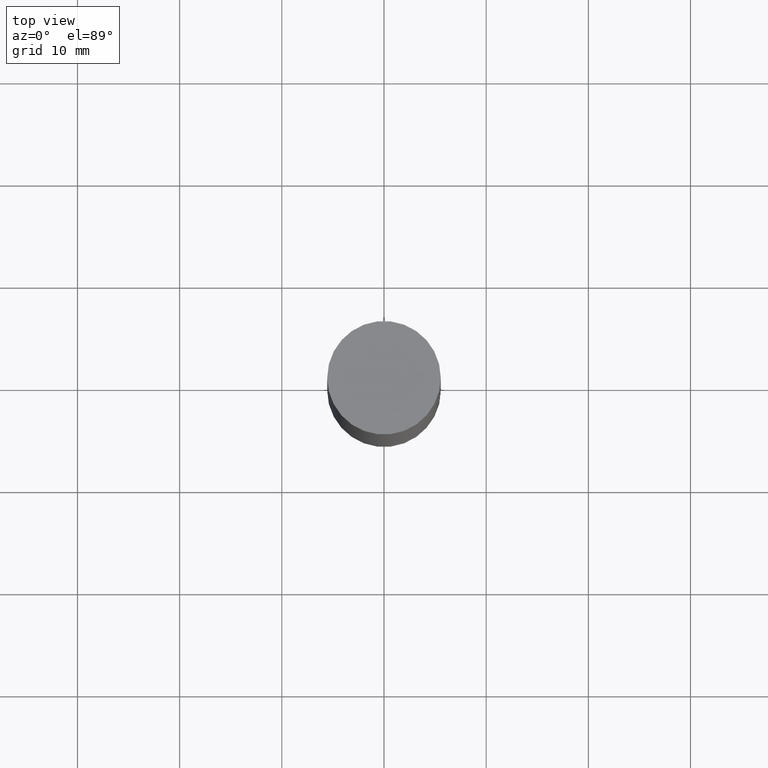
[diagram: clean part render]
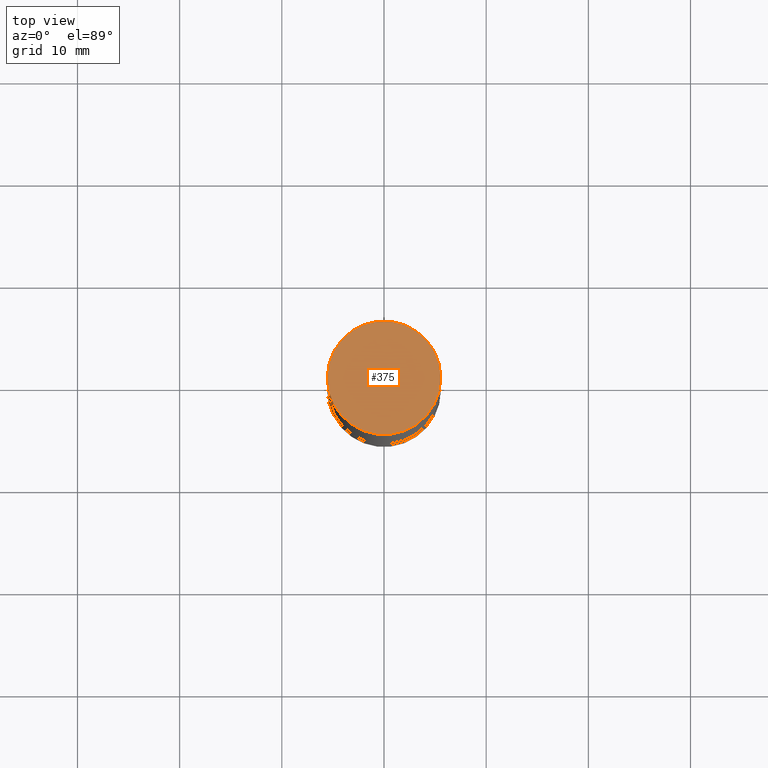
[diagram: same view with one face highlighted and labeled with its STEP entity id]
A machine part, top view. The second image highlights one B-rep face of the part: STEP entity #375.
In plain terms, the highlighted planar face has unit normal (0, 0, 1).
Its self-contained STEP definition (entity closure, byte-faithful):
#18 = DIRECTION ( 'NONE',  ( -1.000000000000000000, 6.982962677686265922E-15, -9.839502134516470631E-33 ) ) ;
#66 = PLANE ( 'NONE',  #597 ) ;
#68 = CIRCLE ( 'NONE', #588, 0.2187500000000000000 ) ;
#96 = ORIENTED_EDGE ( 'NONE', *, *, #162, .T. ) ;
#123 = FACE_OUTER_BOUND ( 'NONE', #349, .T. ) ;
#162 = EDGE_CURVE ( 'NONE', #638, #315, #338, .T. ) ;
#177 = CARTESIAN_POINT ( 'NONE',  ( -0.2187500000000000000, 5.211692063408169128E-16, 5.463695987328561936E-16 ) ) ;
#185 = CARTESIAN_POINT ( 'NONE',  ( 6.725039217009124520E-29, 1.937474974335603146E-18, 5.463695987328526437E-16 ) ) ;
#277 = CARTESIAN_POINT ( 'NONE',  ( 1.527523085743937699E-15, 0.2187500000000000000, -5.463695987328526437E-16 ) ) ;
#315 = VERTEX_POINT ( 'NONE', #326 ) ;
#326 = CARTESIAN_POINT ( 'NONE',  ( 0.2187500000000000000, -1.525585610769535201E-15, 5.463695987328526437E-16 ) ) ;
#334 = ORIENTED_EDGE ( 'NONE', *, *, #499, .T. ) ;
#338 = CIRCLE ( 'NONE', #437, 0.2187500000000000000 ) ;
#349 = EDGE_LOOP ( 'NONE', ( #334, #96 ) ) ;
#369 = DIRECTION ( 'NONE',  ( 1.000000000000000000, -6.982962677686266711E-15, 0.000000000000000000 ) ) ;
#375 = ADVANCED_FACE ( 'NONE', ( #123 ), #66, .T. ) ;
#381 = CARTESIAN_POINT ( 'NONE',  ( 6.725039217009124520E-29, 1.937474974335603146E-18, 5.463695987328526437E-16 ) ) ;
#394 = DIRECTION ( 'NONE',  ( 1.000000000000000000, -6.982962677686266711E-15, 0.000000000000000000 ) ) ;
#402 = DIRECTION ( 'NONE',  ( 2.445468806185136597E-29, 3.492890411551752677E-15, 1.000000000000000000 ) ) ;
#437 = AXIS2_PLACEMENT_3D ( 'NONE', #185, #402, #394 ) ;
#495 = DIRECTION ( 'NONE',  ( 2.438088387897959769E-29, 3.492890411551753071E-15, 1.000000000000000000 ) ) ;
#499 = EDGE_CURVE ( 'NONE', #315, #638, #68, .T. ) ;
#588 = AXIS2_PLACEMENT_3D ( 'NONE', #381, #628, #369 ) ;
#597 = AXIS2_PLACEMENT_3D ( 'NONE', #277, #495, #18 ) ;
#628 = DIRECTION ( 'NONE',  ( 2.445468806185136597E-29, 3.492890411551752677E-15, 1.000000000000000000 ) ) ;
#638 = VERTEX_POINT ( 'NONE', #177 ) ;